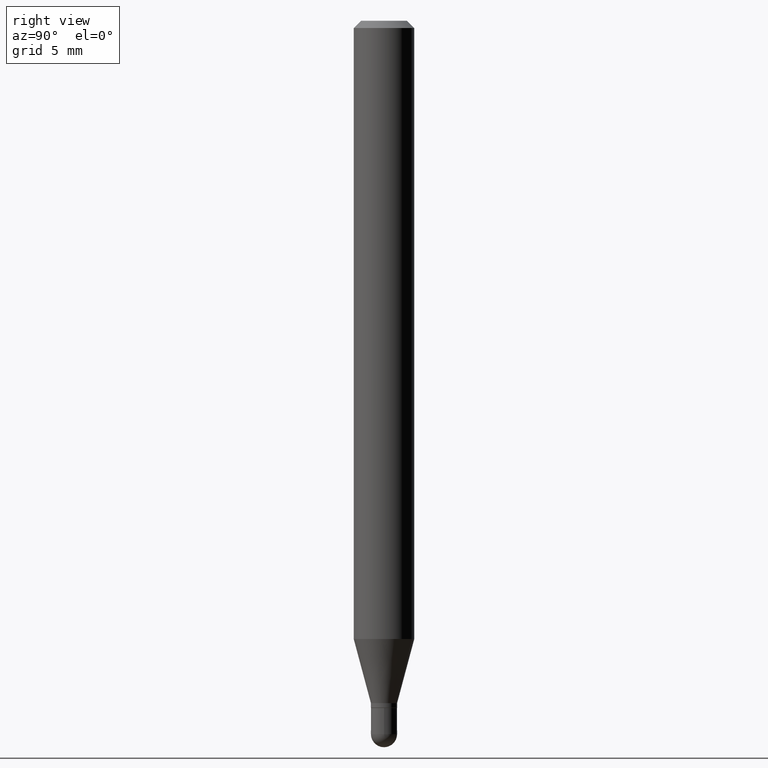
[diagram: clean part render]
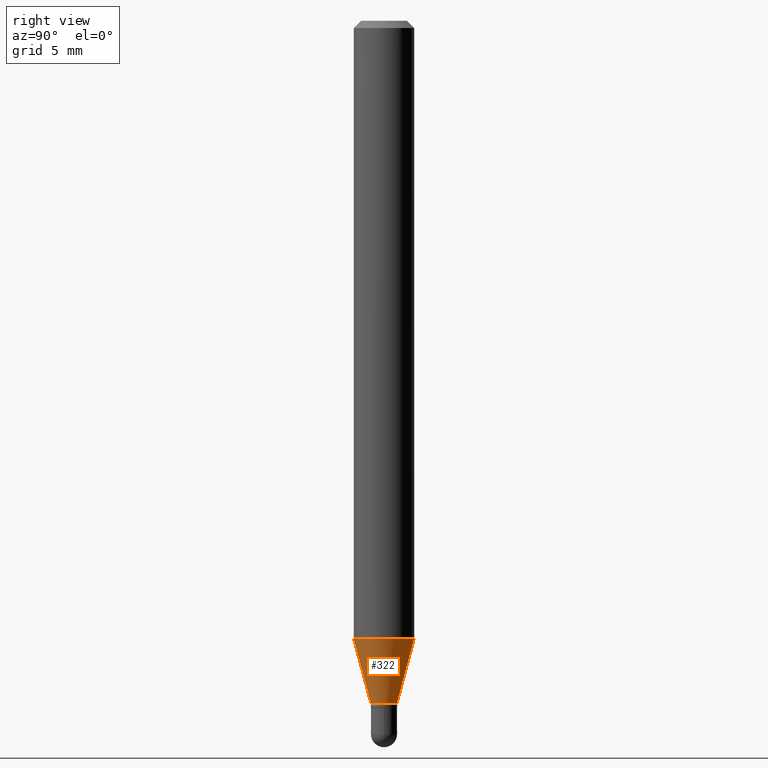
[diagram: same view with one face highlighted and labeled with its STEP entity id]
A machine part, right view. The second image highlights one B-rep face of the part: STEP entity #322.
In plain terms, the highlighted conical surface has half-angle 15 deg.
Its self-contained STEP definition (entity closure, byte-faithful):
#3 = CONICAL_SURFACE ( 'NONE', #182, 0.02699999999999992337, 0.2617993877991505736 ) ;
#5 = CARTESIAN_POINT ( 'NONE',  ( 3.445667035650748496E-29, -4.919495075907522612E-15, -1.409000000000000474 ) ) ;
#8 = EDGE_CURVE ( 'NONE', #158, #416, #501, .T. ) ;
#25 = DIRECTION ( 'NONE',  ( 1.839019923739602287E-15, 0.2588190451025252359, 0.9659258262890670910 ) ) ;
#28 = EDGE_CURVE ( 'NONE', #125, #490, #506, .T. ) ;
#30 = VECTOR ( 'NONE', #25, 39.37007874015748143 ) ;
#36 = ORIENTED_EDGE ( 'NONE', *, *, #72, .F. ) ;
#40 = CARTESIAN_POINT ( 'NONE',  ( 3.179678742526774589E-16, 0.02699999999999500022, -1.409000000000000474 ) ) ;
#47 = ORIENTED_EDGE ( 'NONE', *, *, #28, .T. ) ;
#48 = CARTESIAN_POINT ( 'NONE',  ( -4.364351673553605587E-16, -0.06250000000000449640, -1.276512196331305304 ) ) ;
#51 = CARTESIAN_POINT ( 'NONE',  ( 3.445667035650748496E-29, -4.919495075907522612E-15, -1.409000000000000474 ) ) ;
#69 = EDGE_CURVE ( 'NONE', #158, #125, #340, .T. ) ;
#72 = EDGE_CURVE ( 'NONE', #416, #490, #79, .T. ) ;
#79 = CIRCLE ( 'NONE', #167, 0.06250000000000000000 ) ;
#86 = DIRECTION ( 'NONE',  ( -2.445469862065824792E-29, 3.491479826761902806E-15, 1.000000000000000000 ) ) ;
#102 = VECTOR ( 'NONE', #136, 39.37007874015748854 ) ;
#110 = AXIS2_PLACEMENT_3D ( 'NONE', #5, #273, #314 ) ;
#122 = DIRECTION ( 'NONE',  ( -6.982962677686265922E-15, -1.000000000000000000, 0.000000000000000000 ) ) ;
#125 = VERTEX_POINT ( 'NONE', #40 ) ;
#136 = DIRECTION ( 'NONE',  ( -1.807323732225332111E-15, -0.2588190451025184635, 0.9659258262890689783 ) ) ;
#156 = CARTESIAN_POINT ( 'NONE',  ( 3.121672104687660852E-29, -4.456916582106282753E-15, -1.276512196331305526 ) ) ;
#158 = VERTEX_POINT ( 'NONE', #474 ) ;
#167 = AXIS2_PLACEMENT_3D ( 'NONE', #156, #428, #400 ) ;
#179 = CARTESIAN_POINT ( 'NONE',  ( -1.885399922974942083E-16, -0.02700000000000484304, -1.409000000000000474 ) ) ;
#182 = AXIS2_PLACEMENT_3D ( 'NONE', #51, #86, #122 ) ;
#273 = DIRECTION ( 'NONE',  ( -2.445469862065824792E-29, 3.491479826761902806E-15, 1.000000000000000000 ) ) ;
#314 = DIRECTION ( 'NONE',  ( -6.982962677686265922E-15, -1.000000000000000000, 0.000000000000000000 ) ) ;
#322 = ADVANCED_FACE ( 'NONE', ( #405 ), #3, .T. ) ;
#334 = CARTESIAN_POINT ( 'NONE',  ( 1.918465386552609197E-16, 0.02699999999999500022, -1.409000000000000474 ) ) ;
#340 = CIRCLE ( 'NONE', #110, 0.02699999999999992337 ) ;
#370 = EDGE_LOOP ( 'NONE', ( #418, #47, #36, #470 ) ) ;
#400 = DIRECTION ( 'NONE',  ( -6.982962677686265922E-15, -1.000000000000000000, 4.370956789862821150E-15 ) ) ;
#405 = FACE_OUTER_BOUND ( 'NONE', #370, .T. ) ;
#416 = VERTEX_POINT ( 'NONE', #48 ) ;
#418 = ORIENTED_EDGE ( 'NONE', *, *, #69, .T. ) ;
#428 = DIRECTION ( 'NONE',  ( -2.445469862065824792E-29, 3.491479826761902806E-15, 1.000000000000000000 ) ) ;
#470 = ORIENTED_EDGE ( 'NONE', *, *, #8, .F. ) ;
#474 = CARTESIAN_POINT ( 'NONE',  ( -1.885399922974942083E-16, -0.02700000000000484304, -1.409000000000000474 ) ) ;
#476 = CARTESIAN_POINT ( 'NONE',  ( 4.440892098500935790E-16, 0.06249999999999551747, -1.276512196331305971 ) ) ;
#490 = VERTEX_POINT ( 'NONE', #476 ) ;
#501 = LINE ( 'NONE', #179, #102 ) ;
#506 = LINE ( 'NONE', #334, #30 ) ;